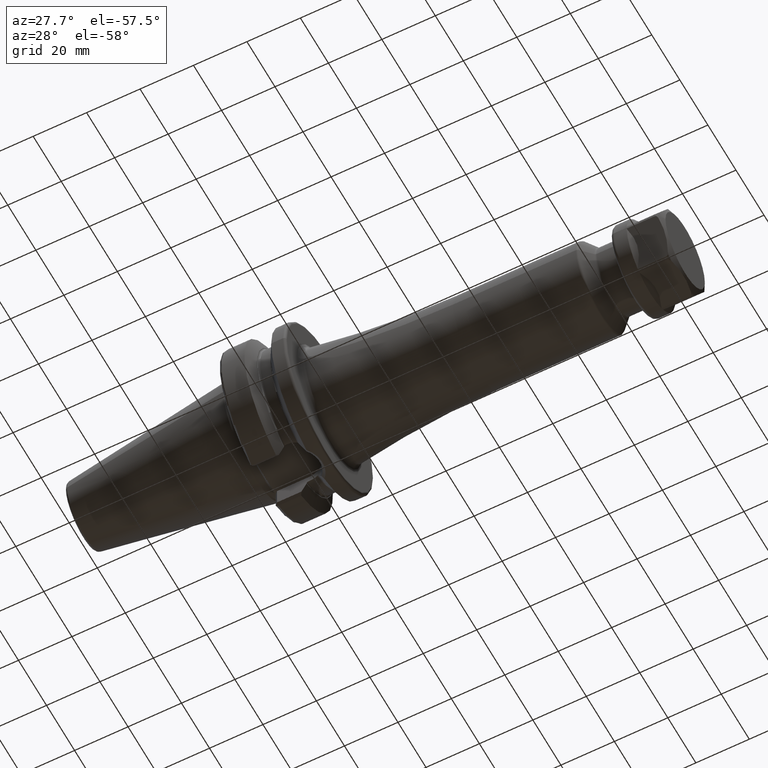
[diagram: clean part render]
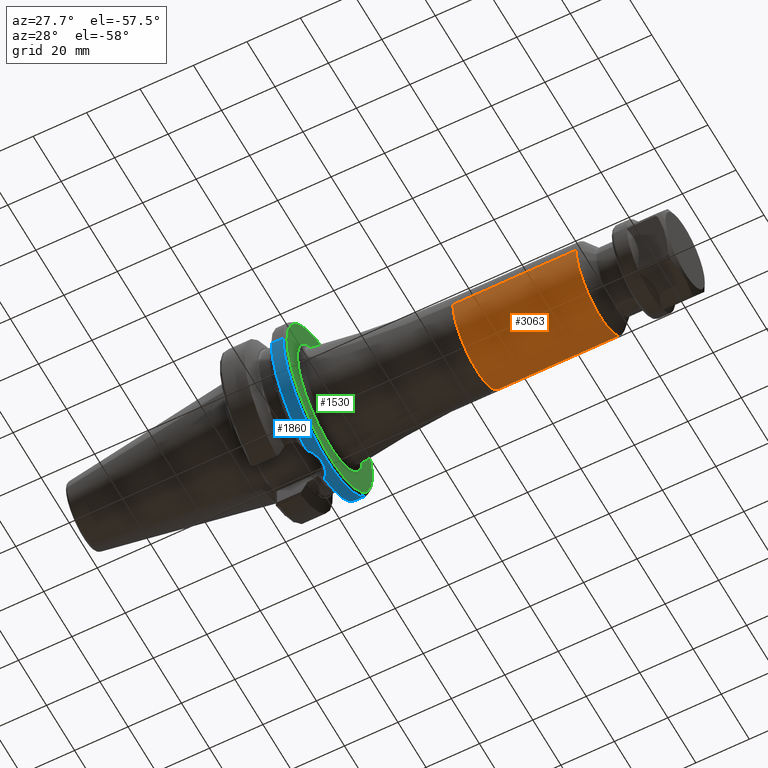
[diagram: same view with three faces highlighted in distinct colors, each labeled with its STEP entity id]
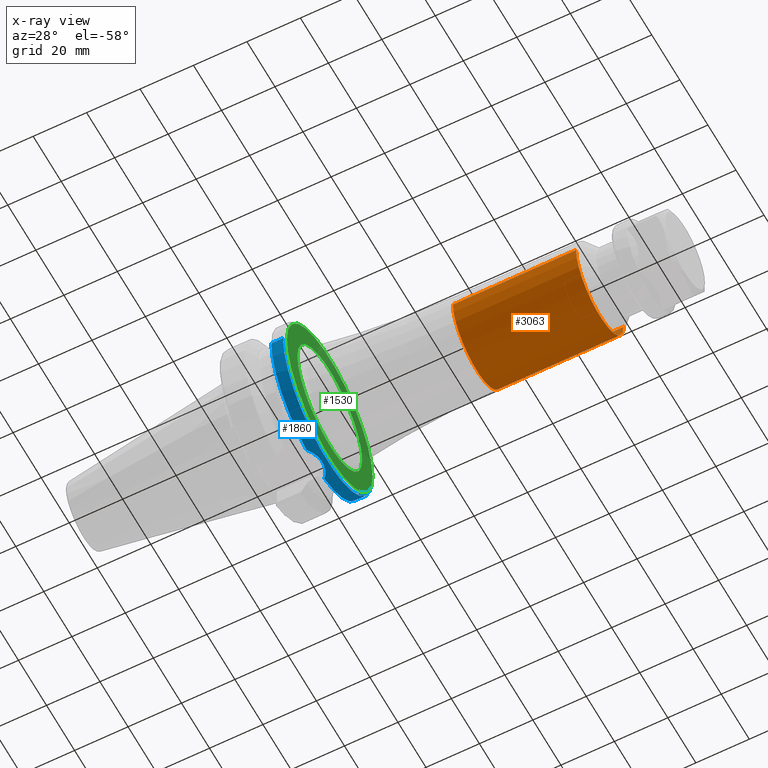
[diagram: x-ray of the same camera — body ghosted, the three highlighted faces saturated]
A machine part, auxiliary view with three faces highlighted in distinct colors.
The next image is the same camera in x-ray (body ghosted, the three faces saturated) — at least one of them is partly hidden behind the body in this view.
Their STEP definitions:

[orange] entity #3063 — the highlighted cylindrical surface (partial cylindrical patch) has radius 17 mm, axis along (1, 0, 0).
#1096=CARTESIAN_POINT('',(8.2E1,0.E0,0.E0));
#1097=DIRECTION('',(-1.E0,0.E0,0.E0));
#1098=DIRECTION('',(0.E0,1.E0,0.E0));
#1099=AXIS2_PLACEMENT_3D('',#1096,#1097,#1098);
#1101=DIRECTION('',(-1.E0,0.E0,-7.804754887665E-14));
#1102=VECTOR('',#1101,4.608578643763E1);
#1103=CARTESIAN_POINT('',(1.280857864376E2,-1.7E1,3.594138701866E-12));
#1104=LINE('',#1103,#1102);
#1105=CARTESIAN_POINT('',(1.280857864376E2,0.E0,0.E0));
#1106=DIRECTION('',(-1.E0,0.E0,0.E0));
#1107=DIRECTION('',(0.E0,1.E0,0.E0));
#1108=AXIS2_PLACEMENT_3D('',#1105,#1106,#1107);
#1110=DIRECTION('',(-1.E0,0.E0,7.804447649347E-14));
#1111=VECTOR('',#1110,4.608578643763E1);
#1112=CARTESIAN_POINT('',(1.280857864376E2,1.7E1,-3.594659176756E-12));
#1113=LINE('',#1112,#1111);
#1493=CARTESIAN_POINT('',(1.280857864376E2,1.7E1,0.E0));
#1494=CARTESIAN_POINT('',(1.280857864376E2,-1.7E1,0.E0));
#1495=VERTEX_POINT('',#1493);
#1496=VERTEX_POINT('',#1494);
#1501=CARTESIAN_POINT('',(8.2E1,-1.7E1,0.E0));
#1502=CARTESIAN_POINT('',(8.2E1,1.7E1,0.E0));
#1503=VERTEX_POINT('',#1501);
#1504=VERTEX_POINT('',#1502);
#3049=CARTESIAN_POINT('',(2.0925E1,0.E0,0.E0));
#3050=DIRECTION('',(1.E0,0.E0,0.E0));
#3051=DIRECTION('',(0.E0,-1.E0,0.E0));
#3052=AXIS2_PLACEMENT_3D('',#3049,#3050,#3051);
#3053=CYLINDRICAL_SURFACE('',#3052,1.7E1);
#3054=ORIENTED_EDGE('',*,*,#3043,.T.);
#3056=ORIENTED_EDGE('',*,*,#3055,.F.);
#3058=ORIENTED_EDGE('',*,*,#3057,.F.);
#3060=ORIENTED_EDGE('',*,*,#3059,.T.);
#3061=EDGE_LOOP('',(#3054,#3056,#3058,#3060));
#3062=FACE_OUTER_BOUND('',#3061,.F.);
#3063=ADVANCED_FACE('',(#3062),#3053,.T.);
#1100=CIRCLE('',#1099,1.7E1);
#1109=CIRCLE('',#1108,1.7E1);
#3043=EDGE_CURVE('',#1504,#1503,#1100,.T.);
#3055=EDGE_CURVE('',#1496,#1503,#1104,.T.);
#3057=EDGE_CURVE('',#1495,#1496,#1109,.T.);
#3059=EDGE_CURVE('',#1495,#1504,#1113,.T.);

[blue] entity #1860 — the highlighted cylindrical surface (partial cylindrical patch) has radius 31.4875 mm, axis along (1, 0, 0).
#185=CARTESIAN_POINT('',(2.162727746897E1,0.E0,0.E0));
#186=DIRECTION('',(1.E0,0.E0,0.E0));
#187=DIRECTION('',(0.E0,-1.E0,0.E0));
#188=AXIS2_PLACEMENT_3D('',#185,#186,#187);
#190=DIRECTION('',(-1.E0,0.E0,0.E0));
#191=VECTOR('',#190,4.372722531031E0);
#192=CARTESIAN_POINT('',(2.6E1,-3.14875E1,0.E0));
#193=LINE('',#192,#191);
#194=CARTESIAN_POINT('',(2.6E1,0.E0,0.E0));
#195=DIRECTION('',(-1.E0,0.E0,0.E0));
#196=DIRECTION('',(0.E0,1.E0,0.E0));
#197=AXIS2_PLACEMENT_3D('',#194,#195,#196);
#199=DIRECTION('',(-1.E0,0.E0,0.E0));
#200=VECTOR('',#199,4.372722531031E0);
#201=CARTESIAN_POINT('',(2.6E1,3.14875E1,0.E0));
#202=LINE('',#201,#200);
#203=CARTESIAN_POINT('',(2.162727746897E1,0.E0,0.E0));
#204=DIRECTION('',(1.E0,0.E0,0.E0));
#205=DIRECTION('',(0.E0,2.025221356988E-1,-9.792776851088E-1));
#206=AXIS2_PLACEMENT_3D('',#203,#204,#205);
#208=CARTESIAN_POINT('',(2.162727746897E1,-6.376922817779E0,-3.083500464774E1));
#209=CARTESIAN_POINT('',(2.179639421098E1,-6.206831610819E0,-3.087018371088E1));
#210=CARTESIAN_POINT('',(2.232364867117E1,-5.632321227298E0,-3.098422972396E1));
#211=CARTESIAN_POINT('',(2.308132499159E1,-4.553413356838E0,-3.116719517710E1));
#212=CARTESIAN_POINT('',(2.375642364916E1,-3.096696697708E0,-3.134706212903E1));
#213=CARTESIAN_POINT('',(2.416388565718E1,-1.551520318298E0,-3.146240625515E1));
#214=CARTESIAN_POINT('',(2.429615986887E1,3.673173569156E-2,-3.150094402831E1));
#215=CARTESIAN_POINT('',(2.415103100304E1,1.624802494737E0,-3.145868929477E1));
#216=CARTESIAN_POINT('',(2.373074835246E1,3.167093598881E0,-3.133996423654E1));
#217=CARTESIAN_POINT('',(2.304347310477E1,4.618481554386E0,-3.115752883213E1));
#218=CARTESIAN_POINT('',(2.229119413287E1,5.670903386055E0,-3.097688944820E1));
#219=CARTESIAN_POINT('',(2.177863162319E1,6.224695230405E0,-3.086648974378E1));
#220=CARTESIAN_POINT('',(2.162727746897E1,6.376915747817E0,-3.083500610986E1));
#1302=CARTESIAN_POINT('',(2.162727746897E1,3.14875E1,0.E0));
#1304=VERTEX_POINT('',#1302);
#1306=CARTESIAN_POINT('',(2.162727746897E1,-3.14875E1,0.E0));
#1307=CARTESIAN_POINT('',(2.162727746897E1,-6.376922817779E0,
-3.083500464774E1));
#1308=VERTEX_POINT('',#1306);
#1309=VERTEX_POINT('',#1307);
#1310=CARTESIAN_POINT('',(2.6E1,3.14875E1,0.E0));
#1311=VERTEX_POINT('',#1310);
#1312=CARTESIAN_POINT('',(2.6E1,-3.14875E1,0.E0));
#1313=VERTEX_POINT('',#1312);
#1316=CARTESIAN_POINT('',(2.162727746897E1,6.376915747817E0,-3.083500610986E1));
#1317=VERTEX_POINT('',#1316);
#1846=CARTESIAN_POINT('',(-7.002E1,0.E0,0.E0));
#1847=DIRECTION('',(1.E0,0.E0,0.E0));
#1848=DIRECTION('',(0.E0,-1.E0,0.E0));
#1849=AXIS2_PLACEMENT_3D('',#1846,#1847,#1848);
#1850=CYLINDRICAL_SURFACE('',#1849,3.14875E1);
#1851=ORIENTED_EDGE('',*,*,#1605,.F.);
#1852=ORIENTED_EDGE('',*,*,#1569,.F.);
#1853=ORIENTED_EDGE('',*,*,#1538,.F.);
#1854=ORIENTED_EDGE('',*,*,#1566,.T.);
#1855=ORIENTED_EDGE('',*,*,#1589,.F.);
#1857=ORIENTED_EDGE('',*,*,#1856,.F.);
#1858=EDGE_LOOP('',(#1851,#1852,#1853,#1854,#1855,#1857));
#1859=FACE_OUTER_BOUND('',#1858,.F.);
#1860=ADVANCED_FACE('',(#1859),#1850,.T.);
#189=CIRCLE('',#188,3.14875E1);
#198=CIRCLE('',#197,3.14875E1);
#207=CIRCLE('',#206,3.14875E1);
#221=B_SPLINE_CURVE_WITH_KNOTS('',3,(#208,#209,#210,#211,#212,#213,#214,#215,
#216,#217,#218,#219,#220),.UNSPECIFIED.,.F.,.F.,(4,1,1,1,1,1,1,1,1,1,4),(0.E0,
5.022508536415E-2,1.633285299657E-1,2.764319745673E-1,3.895354191688E-1,
5.026388637704E-1,6.157423083720E-1,7.288457529735E-1,8.419491975751E-1,
9.550526421767E-1,1.E0),.UNSPECIFIED.);
#1538=EDGE_CURVE('',#1311,#1313,#198,.T.);
#1566=EDGE_CURVE('',#1311,#1304,#202,.T.);
#1569=EDGE_CURVE('',#1313,#1308,#193,.T.);
#1589=EDGE_CURVE('',#1317,#1304,#207,.T.);
#1605=EDGE_CURVE('',#1308,#1309,#189,.T.);
#1856=EDGE_CURVE('',#1309,#1317,#221,.T.);

[green] entity #1530 — the highlighted planar face has unit normal (1, 0, 0).
#2=CARTESIAN_POINT('',(2.7E1,0.E0,0.E0));
#3=DIRECTION('',(1.E0,0.E0,0.E0));
#4=DIRECTION('',(0.E0,-1.E0,0.E0));
#5=AXIS2_PLACEMENT_3D('',#2,#3,#4);
#7=CARTESIAN_POINT('',(2.7E1,0.E0,0.E0));
#8=DIRECTION('',(1.E0,0.E0,0.E0));
#9=DIRECTION('',(0.E0,1.E0,0.E0));
#10=AXIS2_PLACEMENT_3D('',#7,#8,#9);
#22=CARTESIAN_POINT('',(2.7E1,0.E0,0.E0));
#23=DIRECTION('',(-1.E0,0.E0,0.E0));
#24=DIRECTION('',(0.E0,1.E0,0.E0));
#25=AXIS2_PLACEMENT_3D('',#22,#23,#24);
#27=CARTESIAN_POINT('',(2.7E1,0.E0,0.E0));
#28=DIRECTION('',(1.E0,0.E0,0.E0));
#29=DIRECTION('',(0.E0,1.E0,0.E0));
#30=AXIS2_PLACEMENT_3D('',#27,#28,#29);
#1380=CARTESIAN_POINT('',(2.7E1,3.04875E1,0.E0));
#1381=VERTEX_POINT('',#1380);
#1382=CARTESIAN_POINT('',(2.7E1,-3.04875E1,0.E0));
#1383=VERTEX_POINT('',#1382);
#1505=CARTESIAN_POINT('',(2.7E1,-2.305959818596E1,-1.231790693643E-13));
#1506=CARTESIAN_POINT('',(2.7E1,2.305959818596E1,1.203550830535E-13));
#1507=VERTEX_POINT('',#1505);
#1508=VERTEX_POINT('',#1506);
#1513=CARTESIAN_POINT('',(2.7E1,0.E0,0.E0));
#1514=DIRECTION('',(1.E0,0.E0,0.E0));
#1515=DIRECTION('',(0.E0,-1.E0,0.E0));
#1516=AXIS2_PLACEMENT_3D('',#1513,#1514,#1515);
#1517=PLANE('',#1516);
#1519=ORIENTED_EDGE('',*,*,#1518,.T.);
#1521=ORIENTED_EDGE('',*,*,#1520,.F.);
#1522=EDGE_LOOP('',(#1519,#1521));
#1523=FACE_OUTER_BOUND('',#1522,.F.);
#1525=ORIENTED_EDGE('',*,*,#1524,.T.);
#1527=ORIENTED_EDGE('',*,*,#1526,.T.);
#1528=EDGE_LOOP('',(#1525,#1527));
#1529=FACE_BOUND('',#1528,.F.);
#1530=ADVANCED_FACE('',(#1523,#1529),#1517,.T.);
#6=CIRCLE('',#5,2.305959818596E1);
#11=CIRCLE('',#10,2.305959818596E1);
#26=CIRCLE('',#25,3.04875E1);
#31=CIRCLE('',#30,3.04875E1);
#1518=EDGE_CURVE('',#1381,#1383,#26,.T.);
#1520=EDGE_CURVE('',#1381,#1383,#31,.T.);
#1524=EDGE_CURVE('',#1507,#1508,#6,.T.);
#1526=EDGE_CURVE('',#1508,#1507,#11,.T.);